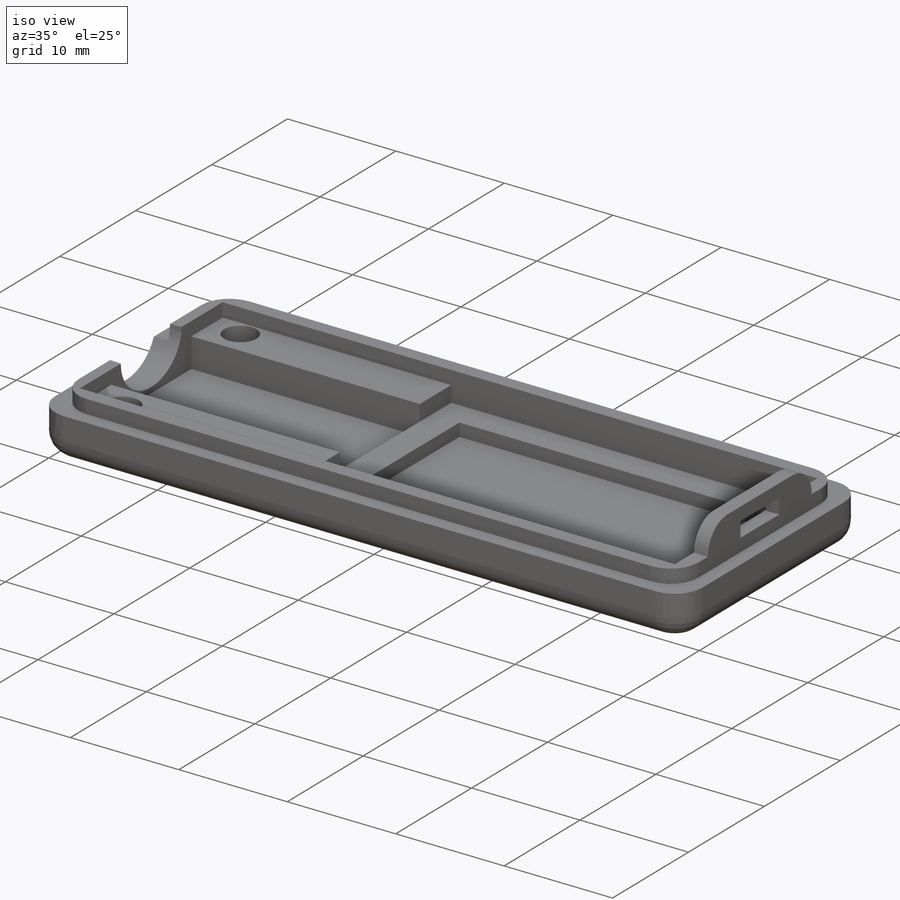
[diagram: iso view]
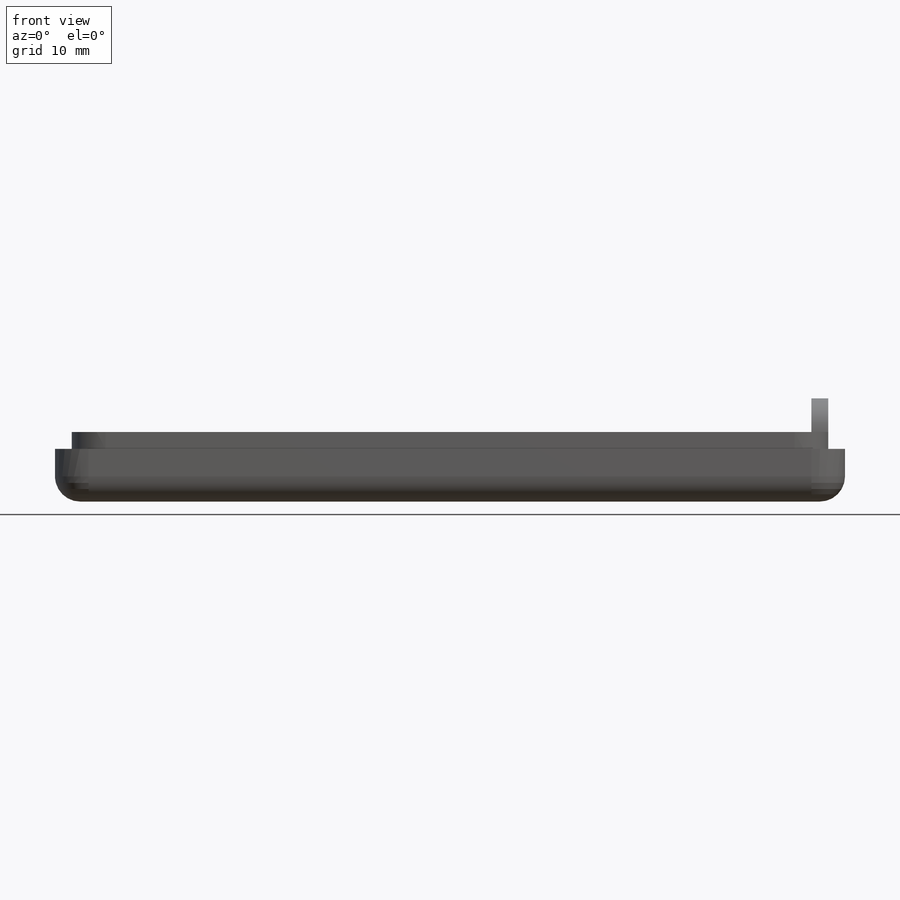
[diagram: front view]
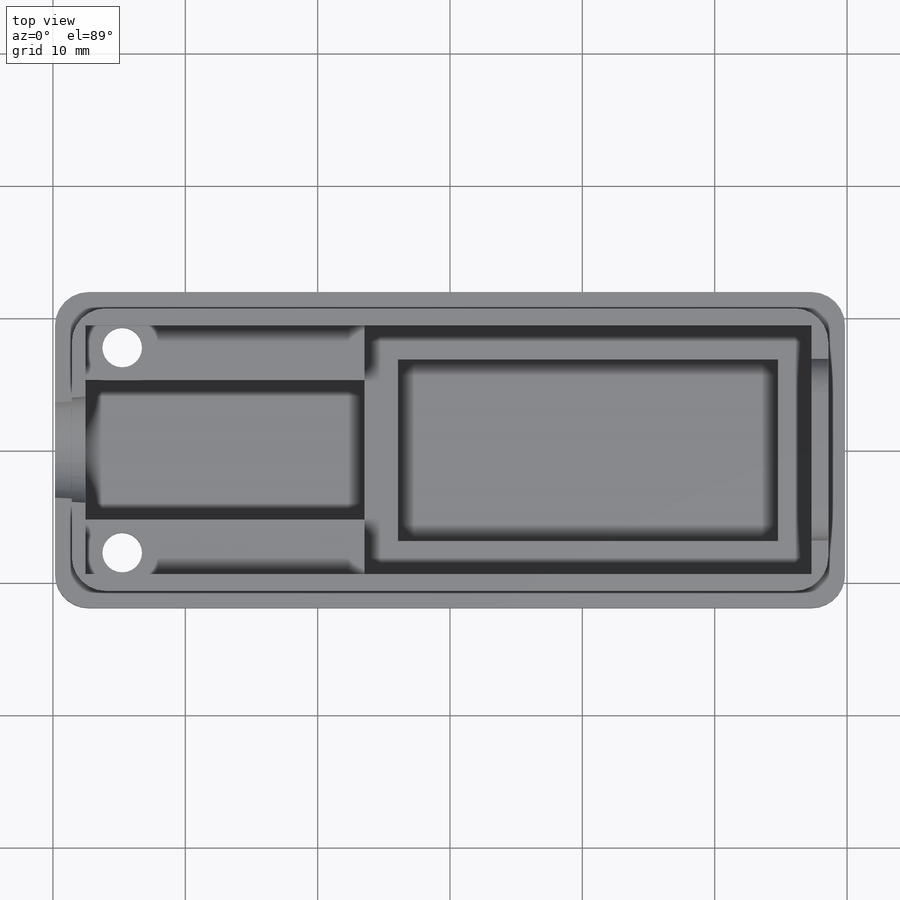
[diagram: top view]
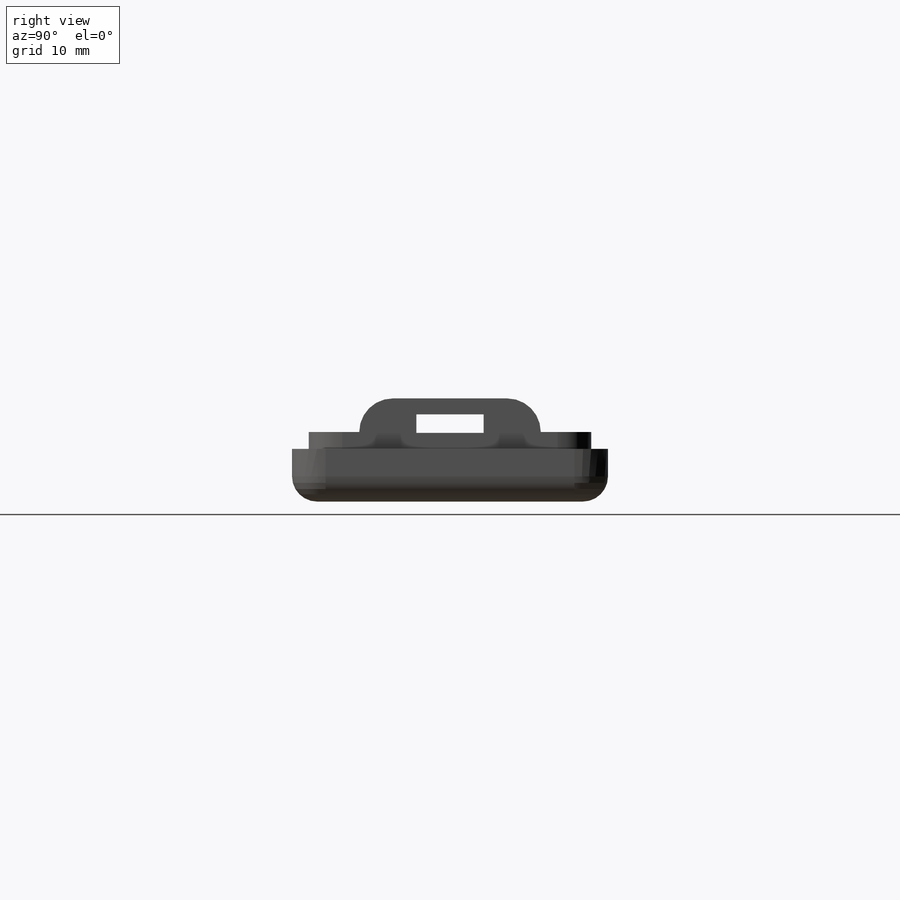
[diagram: right view]
SOLIDWORKS PART (.sldprt)
format: sldprt  version: not decoded by parser v0  size: 543,744 bytes
history: native  units: mm
features: sketch x14, cut_extrude x8, fillet x4, plane x4, extrude x2, material x1 (+12 scaffold rows collapsed)
feature tree (45):
  scaffold x12  (default folders/planes/origin — collapsed)
  material  "Material <not specified>"
  sketch  "Base"  dims[D1=23.876mm D2=59.69mm]
  extrude  "Boss-Extrude1"  Depth=5.2578mm
  sketch  "PCB-Cutout"  dims[c1.D1=33.655mm c1.D2=18.796mm c1.D3=13.0175mm c2.D1=33.782mm c2.D2=18.796mm c2.D3=2.54mm c2.D4=0.0mm]
  cut_extrude  "Cut-Extrude1"  Depth=2.7432mm
  sketch  "Sketch3"  dims[D1=2.54mm D2=2.54mm D3=2.54mm D4=2.54mm D5=10.5664mm D6=0.0mm D7=21.844mm]
  cut_extrude  "Cut-Extrude2"  Depth=1.1938mm
  sketch  "Sketch4"  dims[D1=1.27mm D2=1.27mm D3=1.27mm D4=1.27mm]
  cut_extrude  "Cut-Extrude3"  Depth=1.27mm
  fillet  "Fillet1"  Radius=2.54mm
  fillet  "Fillet2"  Radius=2.54mm
  fillet  "Fillet3"  Radius=1.905mm
  sketch  "Sketch6"  dims[c1.D1=0.0mm c1.D2=10.5664mm c1.D3=0.0mm c1.D4=19.558mm c1.D5=10.5664mm c2.D4=2.54mm c2.D1=0.0mm c3.D4=21.082mm]
  cut_extrude  "Cut-Extrude4"  Depth=3.9878mm
  plane  "Plane1"
  plane  "Plane2"
  plane  "Plane3"
  plane  "Plane4"  Offset=8.9408mm
  sketch  "Sketch9"  dims[D2=3.3274mm D1=5.2324mm]
  sketch  "Sketch10"  dims[D1=5.2324mm D2=3.3274mm]
  sketch  "Sketch11"  dims[D1=5.08mm D2=5.08mm]
  extrude  "Boss-Extrude2"  Depth=2.54mm
  fillet  "Fillet4"  Radius=2.54mm
  sketch  "Sketch12"  dims[D1=5.08mm D2=1.397mm D3=2.54mm D4=0.0635mm]
  cut_extrude  "Cut-Extrude7"  [1 undecoded]
  sketch  "Sketch14"  dims[D1=3.3274mm]
  sketch  "3DSketch3"
  sketch  "Sketch15"  dims[D4=1.397mm D1=5.08mm D2=4.191mm D3=4.191mm]
  cut_extrude  "Cut-Extrude8"  [1 undecoded]
  sketch  "Sketch16"  dims[D1=~2.313346mm]
  cut_extrude  "Cut-Extrude9"  Depth=2.032mm
  sketch  "Sketch17"
  cut_extrude  "Cut-Extrude10"  Depth=1.27mm
decode coverage: 24 of 28 modeling features carry decoded parameters
note: ~ marks probable driven/reference dimensions
note: 2 parameter values undecoded
note: suppression state not decoded; provenance and decode notes live in map.json
